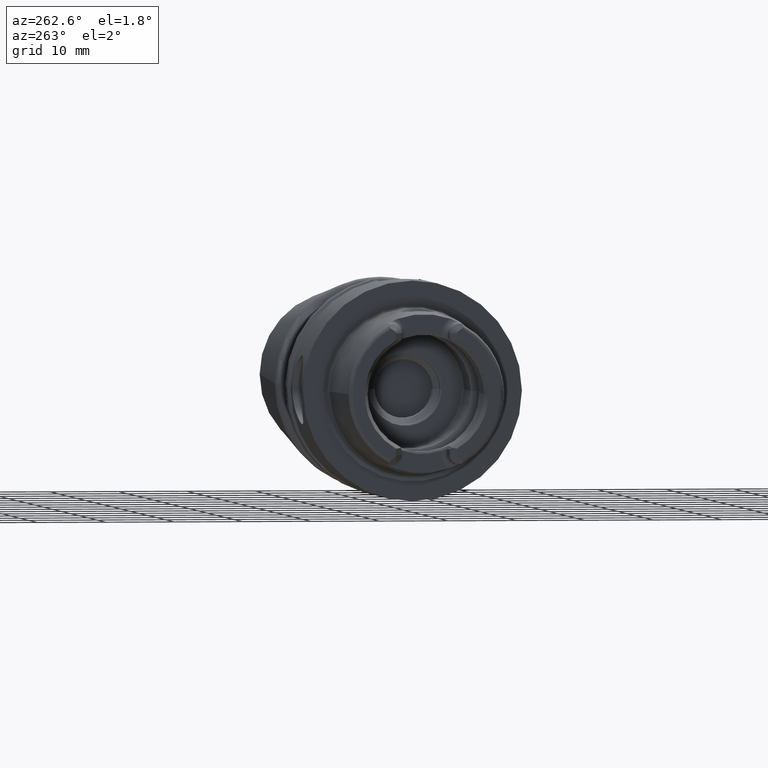
[diagram: clean part render]
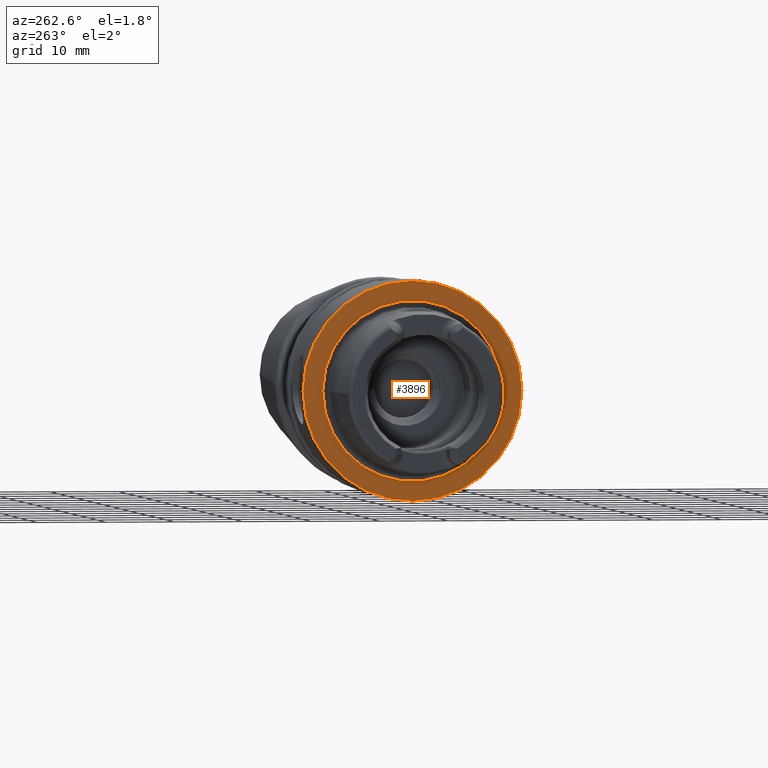
[diagram: same view with one face highlighted and labeled with its STEP entity id]
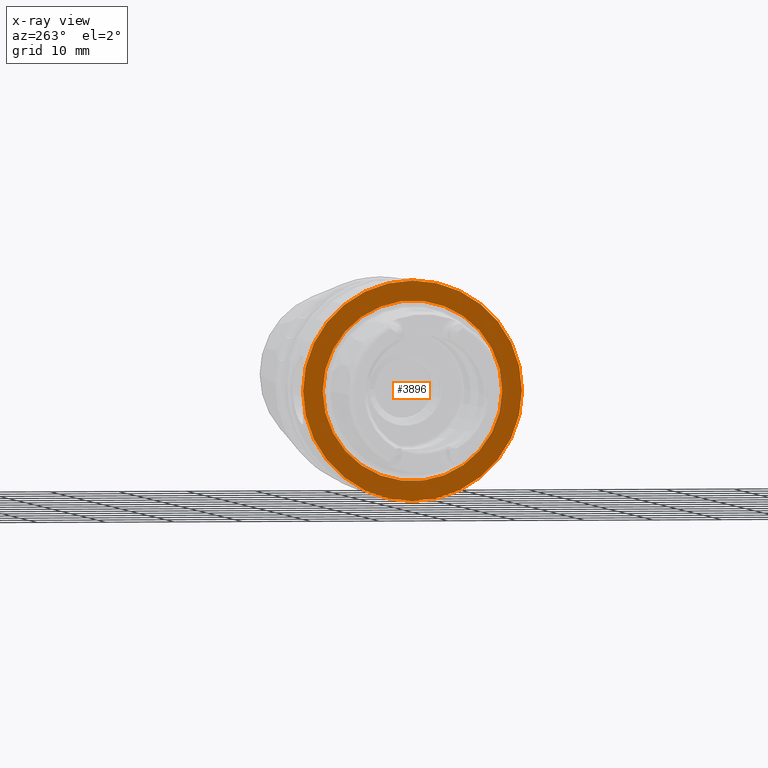
[diagram: x-ray of the same camera — body ghosted, the highlighted face saturated]
A machine part, auxiliary view. The second image highlights one B-rep face of the part: STEP entity #3896.
The next image is the same camera in x-ray: the body ghosted, the highlighted face saturated — about 1% of this face is hidden behind the body in this view.
In plain terms, the highlighted planar face has unit normal (1, 0, 0).
Its self-contained STEP definition (entity closure, byte-faithful):
#652=CARTESIAN_POINT('',(0.E0,0.E0,0.E0));
#653=DIRECTION('',(1.E0,0.E0,0.E0));
#654=DIRECTION('',(0.E0,1.E0,0.E0));
#655=AXIS2_PLACEMENT_3D('',#652,#653,#654);
#657=CARTESIAN_POINT('',(0.E0,0.E0,0.E0));
#658=DIRECTION('',(-1.E0,0.E0,0.E0));
#659=DIRECTION('',(0.E0,1.E0,0.E0));
#660=AXIS2_PLACEMENT_3D('',#657,#658,#659);
#662=CARTESIAN_POINT('',(0.E0,0.E0,0.E0));
#663=DIRECTION('',(-1.E0,0.E0,0.E0));
#664=DIRECTION('',(0.E0,-1.E0,0.E0));
#665=AXIS2_PLACEMENT_3D('',#662,#663,#664);
#667=CARTESIAN_POINT('',(0.E0,0.E0,0.E0));
#668=DIRECTION('',(-1.E0,0.E0,0.E0));
#669=DIRECTION('',(0.E0,1.E0,0.E0));
#670=AXIS2_PLACEMENT_3D('',#667,#668,#669);
#2721=CARTESIAN_POINT('',(0.E0,-1.311372602740E1,0.E0));
#2722=VERTEX_POINT('',#2721);
#2723=CARTESIAN_POINT('',(0.E0,1.311372602740E1,0.E0));
#2724=VERTEX_POINT('',#2723);
#3070=CARTESIAN_POINT('',(0.E0,1.6E1,0.E0));
#3071=CARTESIAN_POINT('',(0.E0,-1.6E1,0.E0));
#3072=VERTEX_POINT('',#3070);
#3073=VERTEX_POINT('',#3071);
#3881=CARTESIAN_POINT('',(0.E0,0.E0,0.E0));
#3882=DIRECTION('',(1.E0,0.E0,0.E0));
#3883=DIRECTION('',(0.E0,-1.E0,0.E0));
#3884=AXIS2_PLACEMENT_3D('',#3881,#3882,#3883);
#3885=PLANE('',#3884);
#3887=ORIENTED_EDGE('',*,*,#3886,.T.);
#3889=ORIENTED_EDGE('',*,*,#3888,.F.);
#3890=EDGE_LOOP('',(#3887,#3889));
#3891=FACE_OUTER_BOUND('',#3890,.F.);
#3892=ORIENTED_EDGE('',*,*,#3876,.T.);
#3893=ORIENTED_EDGE('',*,*,#3860,.T.);
#3894=EDGE_LOOP('',(#3892,#3893));
#3895=FACE_BOUND('',#3894,.F.);
#3896=ADVANCED_FACE('',(#3891,#3895),#3885,.F.);
#656=CIRCLE('',#655,1.6E1);
#661=CIRCLE('',#660,1.6E1);
#666=CIRCLE('',#665,1.311372602740E1);
#671=CIRCLE('',#670,1.311372602740E1);
#3860=EDGE_CURVE('',#2724,#2722,#671,.T.);
#3876=EDGE_CURVE('',#2722,#2724,#666,.T.);
#3886=EDGE_CURVE('',#3072,#3073,#656,.T.);
#3888=EDGE_CURVE('',#3072,#3073,#661,.T.);